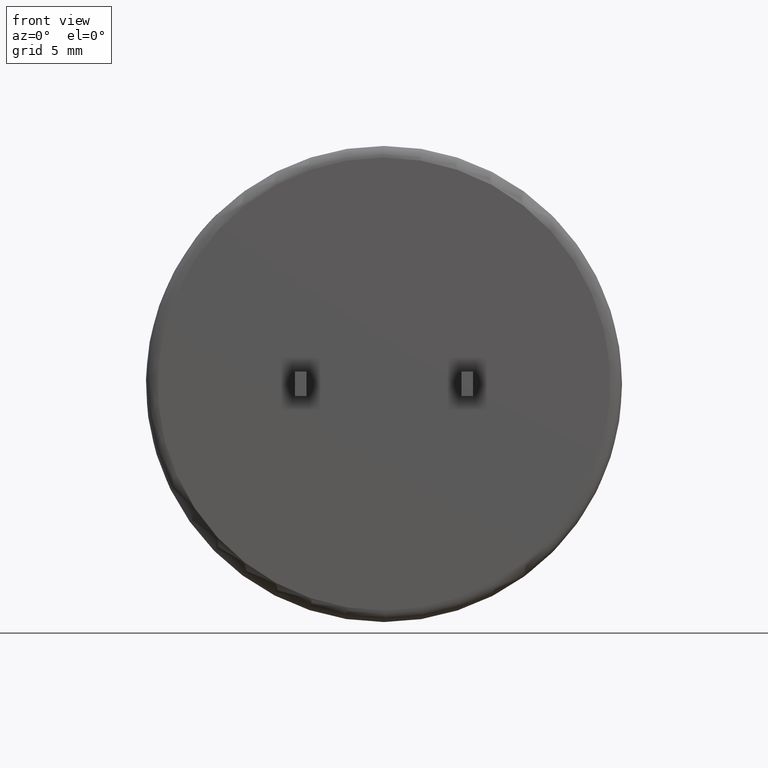
[diagram: clean part render]
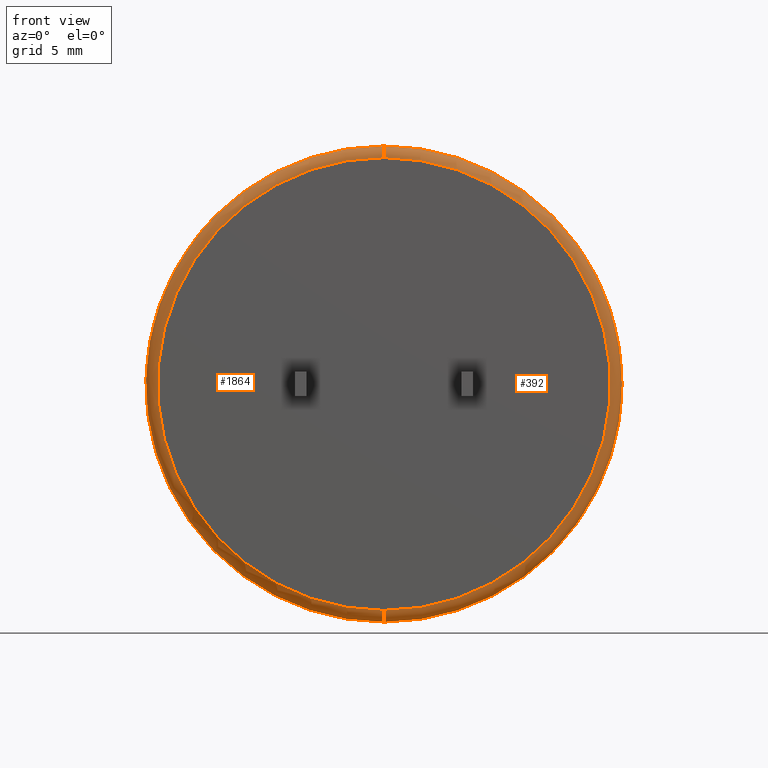
[diagram: same view with one multi-face feature highlighted, each face labeled with its STEP entity id]
A machine part, front view. The highlighted faces form ONE feature: a constant-radius fillet chain: 2 tangent blend faces with common blend radius 0.7095 mm. The faces share edges in the B-rep.
Their STEP definitions:
[1] entity #392 (Torus):
#18 = AXIS2_PLACEMENT_3D ( 'NONE', #2636, #493, #1552 ) ;
#113 = AXIS2_PLACEMENT_3D ( 'NONE', #681, #519, #700 ) ;
#151 = AXIS2_PLACEMENT_3D ( 'NONE', #302, #910, #900 ) ;
#184 = FACE_OUTER_BOUND ( 'NONE', #2345, .T. ) ;
#203 = VERTEX_POINT ( 'NONE', #1608 ) ;
#241 = VERTEX_POINT ( 'NONE', #739 ) ;
#254 = AXIS2_PLACEMENT_3D ( 'NONE', #446, #2457, #2650 ) ;
#302 = CARTESIAN_POINT ( 'NONE',  ( 1.688849168364157500E-015, 0.7095000000000000200, -13.79050000000000200 ) ) ;
#334 = CIRCLE ( 'NONE', #151, 0.7095000000000000200 ) ;
#385 = VERTEX_POINT ( 'NONE', #1297 ) ;
#392 = ADVANCED_FACE ( 'NONE', ( #184 ), #2024, .T. ) ;
#444 = ORIENTED_EDGE ( 'NONE', *, *, #2000, .T. ) ;
#446 = CARTESIAN_POINT ( 'NONE',  ( 0.0000000000000000000, 0.7095000000000000200, 0.0000000000000000000 ) ) ;
#493 = DIRECTION ( 'NONE',  ( -1.000000000000000000, 0.0000000000000000000, 0.0000000000000000000 ) ) ;
#519 = DIRECTION ( 'NONE',  ( -0.0000000000000000000, -1.000000000000000000, -0.0000000000000000000 ) ) ;
#526 = AXIS2_PLACEMENT_3D ( 'NONE', #549, #2011, #2044 ) ;
#549 = CARTESIAN_POINT ( 'NONE',  ( 0.0000000000000000000, 0.7095000000000000200, 0.0000000000000000000 ) ) ;
#681 = CARTESIAN_POINT ( 'NONE',  ( 0.0000000000000000000, 0.0000000000000000000, 0.0000000000000000000 ) ) ;
#700 = DIRECTION ( 'NONE',  ( 0.0000000000000000000, 0.0000000000000000000, 1.000000000000000000 ) ) ;
#739 = CARTESIAN_POINT ( 'NONE',  ( 1.732293513563909800E-015, 0.0000000000000000000, -13.79050000000000200 ) ) ;
#756 = ORIENTED_EDGE ( 'NONE', *, *, #1812, .F. ) ;
#883 = ORIENTED_EDGE ( 'NONE', *, *, #1155, .F. ) ;
#900 = DIRECTION ( 'NONE',  ( 1.224646799147351700E-016, 0.0000000000000000000, -1.000000000000000000 ) ) ;
#910 = DIRECTION ( 'NONE',  ( 1.000000000000000000, -0.0000000000000000000, 1.224646799147353200E-016 ) ) ;
#1092 = ORIENTED_EDGE ( 'NONE', *, *, #1208, .F. ) ;
#1108 = CARTESIAN_POINT ( 'NONE',  ( 1.775737858763662000E-015, 0.7095000000000000200, 14.50000000000000000 ) ) ;
#1155 = EDGE_CURVE ( 'NONE', #241, #385, #1574, .T. ) ;
#1208 = EDGE_CURVE ( 'NONE', #385, #2724, #1213, .T. ) ;
#1213 = CIRCLE ( 'NONE', #18, 0.7095000000000000200 ) ;
#1297 = CARTESIAN_POINT ( 'NONE',  ( 0.0000000000000000000, 0.0000000000000000000, 13.79050000000000200 ) ) ;
#1479 = CIRCLE ( 'NONE', #526, 14.50000000000000000 ) ;
#1552 = DIRECTION ( 'NONE',  ( 0.0000000000000000000, 0.0000000000000000000, 1.000000000000000000 ) ) ;
#1574 = CIRCLE ( 'NONE', #113, 13.79050000000000200 ) ;
#1608 = CARTESIAN_POINT ( 'NONE',  ( 0.0000000000000000000, 0.7095000000000000200, -14.50000000000000000 ) ) ;
#1812 = EDGE_CURVE ( 'NONE', #2724, #203, #1479, .T. ) ;
#2000 = EDGE_CURVE ( 'NONE', #241, #203, #334, .T. ) ;
#2011 = DIRECTION ( 'NONE',  ( 0.0000000000000000000, 1.000000000000000000, 0.0000000000000000000 ) ) ;
#2024 = TOROIDAL_SURFACE ( 'NONE', #254, 13.79050000000000200, 0.7095000000000000200 ) ;
#2044 = DIRECTION ( 'NONE',  ( 0.0000000000000000000, 0.0000000000000000000, 1.000000000000000000 ) ) ;
#2345 = EDGE_LOOP ( 'NONE', ( #883, #444, #756, #1092 ) ) ;
#2457 = DIRECTION ( 'NONE',  ( 0.0000000000000000000, 1.000000000000000000, 0.0000000000000000000 ) ) ;
#2636 = CARTESIAN_POINT ( 'NONE',  ( 0.0000000000000000000, 0.7095000000000000200, 13.79050000000000200 ) ) ;
#2650 = DIRECTION ( 'NONE',  ( 0.0000000000000000000, 0.0000000000000000000, 1.000000000000000000 ) ) ;
#2724 = VERTEX_POINT ( 'NONE', #1108 ) ;
[2] entity #1864 (Torus):
#18 = AXIS2_PLACEMENT_3D ( 'NONE', #2636, #493, #1552 ) ;
#151 = AXIS2_PLACEMENT_3D ( 'NONE', #302, #910, #900 ) ;
#161 = EDGE_CURVE ( 'NONE', #2461, #2724, #586, .T. ) ;
#203 = VERTEX_POINT ( 'NONE', #1608 ) ;
#241 = VERTEX_POINT ( 'NONE', #739 ) ;
#250 = CARTESIAN_POINT ( 'NONE',  ( 0.0000000000000000000, 0.7095000000000000200, 0.0000000000000000000 ) ) ;
#300 = CARTESIAN_POINT ( 'NONE',  ( -10.18367954714648200, 0.7095000000000000200, 10.32195092417273900 ) ) ;
#302 = CARTESIAN_POINT ( 'NONE',  ( 1.688849168364157500E-015, 0.7095000000000000200, -13.79050000000000200 ) ) ;
#322 = DIRECTION ( 'NONE',  ( -0.0000000000000000000, -1.000000000000000000, -0.0000000000000000000 ) ) ;
#334 = CIRCLE ( 'NONE', #151, 0.7095000000000000200 ) ;
#359 = EDGE_LOOP ( 'NONE', ( #893, #668, #1286, #2749, #2319, #2113 ) ) ;
#378 = AXIS2_PLACEMENT_3D ( 'NONE', #2222, #322, #1161 ) ;
#385 = VERTEX_POINT ( 'NONE', #1297 ) ;
#493 = DIRECTION ( 'NONE',  ( -1.000000000000000000, 0.0000000000000000000, 0.0000000000000000000 ) ) ;
#499 = AXIS2_PLACEMENT_3D ( 'NONE', #1565, #2194, #2202 ) ;
#535 = CARTESIAN_POINT ( 'NONE',  ( 0.0000000000000000000, 0.7095000000000000200, 0.0000000000000000000 ) ) ;
#538 = EDGE_CURVE ( 'NONE', #385, #241, #1136, .T. ) ;
#554 = DIRECTION ( 'NONE',  ( 0.0000000000000000000, 1.000000000000000000, 0.0000000000000000000 ) ) ;
#586 = CIRCLE ( 'NONE', #1849, 14.50000000000000000 ) ;
#667 = CIRCLE ( 'NONE', #1564, 14.50000000000000000 ) ;
#668 = ORIENTED_EDGE ( 'NONE', *, *, #538, .F. ) ;
#705 = CARTESIAN_POINT ( 'NONE',  ( -11.50616822960726400, 0.7095000000000000200, 8.823723288497689100 ) ) ;
#739 = CARTESIAN_POINT ( 'NONE',  ( 1.732293513563909800E-015, 0.0000000000000000000, -13.79050000000000200 ) ) ;
#808 = FACE_OUTER_BOUND ( 'NONE', #359, .T. ) ;
#893 = ORIENTED_EDGE ( 'NONE', *, *, #2000, .F. ) ;
#900 = DIRECTION ( 'NONE',  ( 1.224646799147351700E-016, 0.0000000000000000000, -1.000000000000000000 ) ) ;
#910 = DIRECTION ( 'NONE',  ( 1.000000000000000000, -0.0000000000000000000, 1.224646799147353200E-016 ) ) ;
#1008 = TOROIDAL_SURFACE ( 'NONE', #1313, 13.79050000000000200, 0.7095000000000000200 ) ;
#1108 = CARTESIAN_POINT ( 'NONE',  ( 1.775737858763662000E-015, 0.7095000000000000200, 14.50000000000000000 ) ) ;
#1126 = DIRECTION ( 'NONE',  ( 0.0000000000000000000, 0.0000000000000000000, 1.000000000000000000 ) ) ;
#1136 = CIRCLE ( 'NONE', #378, 13.79050000000000200 ) ;
#1161 = DIRECTION ( 'NONE',  ( 0.0000000000000000000, 0.0000000000000000000, 1.000000000000000000 ) ) ;
#1208 = EDGE_CURVE ( 'NONE', #385, #2724, #1213, .T. ) ;
#1213 = CIRCLE ( 'NONE', #18, 0.7095000000000000200 ) ;
#1256 = DIRECTION ( 'NONE',  ( 0.0000000000000000000, 1.000000000000000000, 0.0000000000000000000 ) ) ;
#1286 = ORIENTED_EDGE ( 'NONE', *, *, #1208, .T. ) ;
#1297 = CARTESIAN_POINT ( 'NONE',  ( 0.0000000000000000000, 0.0000000000000000000, 13.79050000000000200 ) ) ;
#1313 = AXIS2_PLACEMENT_3D ( 'NONE', #250, #1256, #1126 ) ;
#1375 = DIRECTION ( 'NONE',  ( 0.0000000000000000000, 1.000000000000000000, 0.0000000000000000000 ) ) ;
#1552 = DIRECTION ( 'NONE',  ( 0.0000000000000000000, 0.0000000000000000000, 1.000000000000000000 ) ) ;
#1557 = DIRECTION ( 'NONE',  ( 0.0000000000000000000, 0.0000000000000000000, 1.000000000000000000 ) ) ;
#1564 = AXIS2_PLACEMENT_3D ( 'NONE', #535, #1375, #1557 ) ;
#1565 = CARTESIAN_POINT ( 'NONE',  ( 0.0000000000000000000, 0.7095000000000000200, 0.0000000000000000000 ) ) ;
#1608 = CARTESIAN_POINT ( 'NONE',  ( 0.0000000000000000000, 0.7095000000000000200, -14.50000000000000000 ) ) ;
#1849 = AXIS2_PLACEMENT_3D ( 'NONE', #2689, #554, #2229 ) ;
#1864 = ADVANCED_FACE ( 'NONE', ( #808 ), #1008, .T. ) ;
#1884 = CIRCLE ( 'NONE', #499, 14.50000000000000000 ) ;
#2000 = EDGE_CURVE ( 'NONE', #241, #203, #334, .T. ) ;
#2050 = VERTEX_POINT ( 'NONE', #705 ) ;
#2113 = ORIENTED_EDGE ( 'NONE', *, *, #2594, .F. ) ;
#2194 = DIRECTION ( 'NONE',  ( 0.0000000000000000000, 1.000000000000000000, 0.0000000000000000000 ) ) ;
#2202 = DIRECTION ( 'NONE',  ( 0.0000000000000000000, 0.0000000000000000000, 1.000000000000000000 ) ) ;
#2222 = CARTESIAN_POINT ( 'NONE',  ( 0.0000000000000000000, 0.0000000000000000000, 0.0000000000000000000 ) ) ;
#2229 = DIRECTION ( 'NONE',  ( 0.0000000000000000000, 0.0000000000000000000, 1.000000000000000000 ) ) ;
#2319 = ORIENTED_EDGE ( 'NONE', *, *, #2559, .F. ) ;
#2461 = VERTEX_POINT ( 'NONE', #300 ) ;
#2559 = EDGE_CURVE ( 'NONE', #2050, #2461, #667, .T. ) ;
#2594 = EDGE_CURVE ( 'NONE', #203, #2050, #1884, .T. ) ;
#2636 = CARTESIAN_POINT ( 'NONE',  ( 0.0000000000000000000, 0.7095000000000000200, 13.79050000000000200 ) ) ;
#2689 = CARTESIAN_POINT ( 'NONE',  ( 0.0000000000000000000, 0.7095000000000000200, 0.0000000000000000000 ) ) ;
#2724 = VERTEX_POINT ( 'NONE', #1108 ) ;
#2749 = ORIENTED_EDGE ( 'NONE', *, *, #161, .F. ) ;